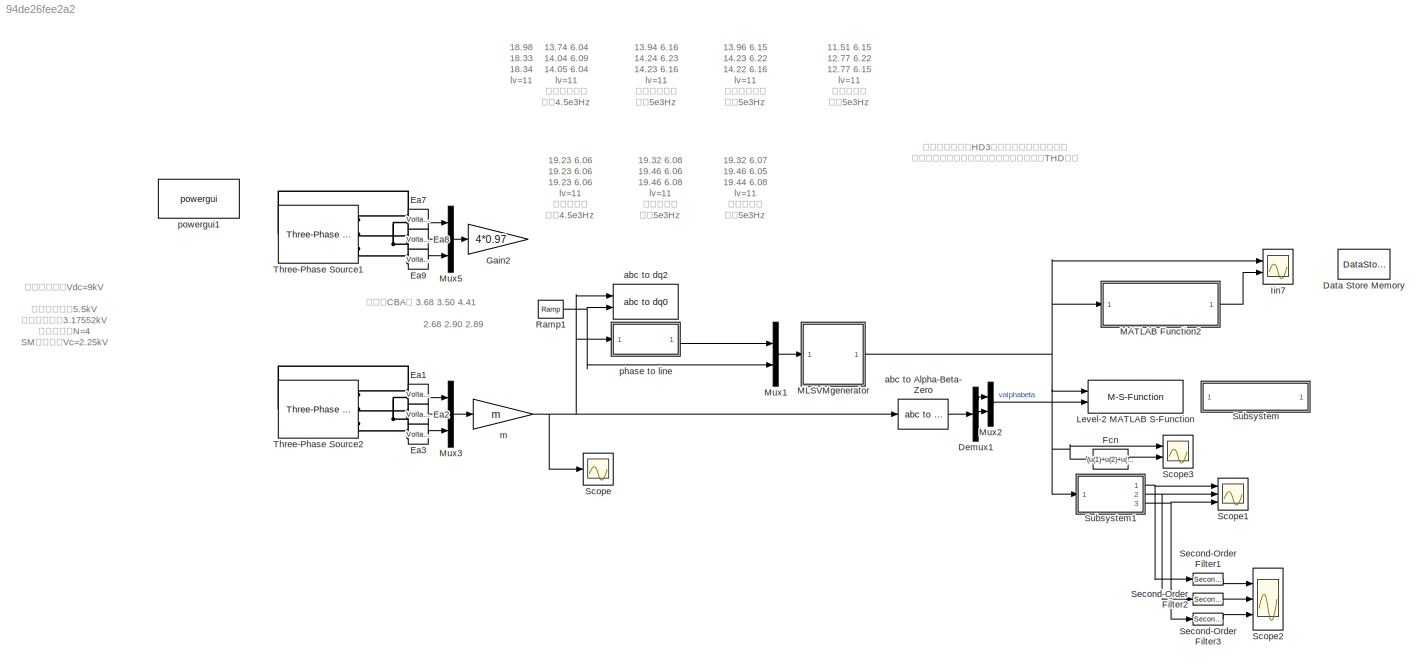
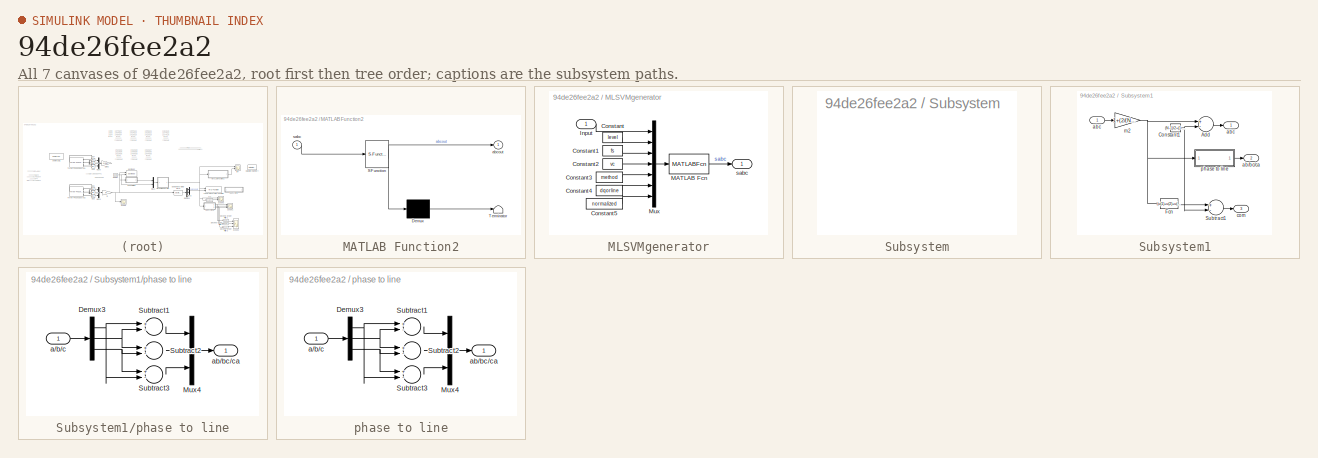
[diagram: thumbnail index - all 7 canvases of the model, root first then tree order]
MODEL slx_94de26fee2a2
KIND model
CONFIG AbsTol = auto
CONFIG EnableMultiTasking = on
CONFIG FixedStep = auto
CONFIG MaxStep = auto
CONFIG MinStep = auto
CONFIG RelTol = 1e-3
CONFIG SampleTimeConstraint = Unconstrained
CONFIG Solver = ode45
CONFIG SolverName = ode45
CONFIG StartTime = 0.0
CONFIG StopTime = 0.03
BLOCK [DataStoreMemory] Data Store Memory
  DataStoreName = prestate
  InitialValue = [0 0 0 0 0 0 0 1 0]
  OutDataTypeStr = double
  ReadBeforeWriteMsg = warning
  ShowAdditionalParam = off
  SignalType = real
  WriteAfterReadMsg = warning
  WriteAfterWriteMsg = warning
BLOCK [Demux] Demux1
  DisplayOption = bar
  Outputs = 3
  Ports = [1, 3]
BLOCK [Reference] Ea1  REF=powerlib/Measurements/Voltage Measurement
  Ports = [0, 1, 0, 0, 0, 2]
  SourceBlock = powerlib/Measurements/Voltage Measurement
  SourceProductBaseCode = PS
  SourceProductName = Simscape Power Systems
  SourceType = Voltage Measurement
BLOCK [Reference] Ea2  REF=powerlib/Measurements/Voltage Measurement
  Ports = [0, 1, 0, 0, 0, 2]
  SourceBlock = powerlib/Measurements/Voltage Measurement
  SourceProductBaseCode = PS
  SourceProductName = Simscape Power Systems
  SourceType = Voltage Measurement
BLOCK [Reference] Ea3  REF=powerlib/Measurements/Voltage Measurement
  Ports = [0, 1, 0, 0, 0, 2]
  SourceBlock = powerlib/Measurements/Voltage Measurement
  SourceProductBaseCode = PS
  SourceProductName = Simscape Power Systems
  SourceType = Voltage Measurement
BLOCK [Reference] Ea7  REF=powerlib/Measurements/Voltage Measurement
  Commented = on
  Ports = [0, 1, 0, 0, 0, 2]
  SourceBlock = powerlib/Measurements/Voltage Measurement
  SourceProductBaseCode = PS
  SourceProductName = Simscape Power Systems
  SourceType = Voltage Measurement
BLOCK [Reference] Ea8  REF=powerlib/Measurements/Voltage Measurement
  Commented = on
  Ports = [0, 1, 0, 0, 0, 2]
  SourceBlock = powerlib/Measurements/Voltage Measurement
  SourceProductBaseCode = PS
  SourceProductName = Simscape Power Systems
  SourceType = Voltage Measurement
BLOCK [Reference] Ea9  REF=powerlib/Measurements/Voltage Measurement
  Commented = on
  Ports = [0, 1, 0, 0, 0, 2]
  SourceBlock = powerlib/Measurements/Voltage Measurement
  SourceProductBaseCode = PS
  SourceProductName = Simscape Power Systems
  SourceType = Voltage Measurement
BLOCK [Fcn] Fcn
  Expr = (u(1)+u(2)+u(3))/3
BLOCK [Gain] Gain2
  Commented = on
  Gain = 4*0.97
  OutDataTypeStr = Inherit: Inherit via internal rule
  ParamDataTypeStr = Inherit: Inherit via internal rule
  SaturateOnIntegerOverflow = off
BLOCK [Scope] Iin7
  Commented = on
  NumInputPorts = 2
  Ports = [2]
  ScopeSpecificationString = Simulink.scopes.TimeScopeBlockCfg('CurrentConfiguration', extmgr.ConfigurationSet(extmgr.Configuration('Core','General UI',true),extmgr.Configuration('Core','Source UI',true),extmgr.Configuration('Sources','WiredSimulink',true,'DataLoggingVariableName','sabc','DataLoggingSaveFormat','StructureWithTime','DataLoggingDecimation','1','DataLoggingDecimateData',true,'DataLogging',true),extmgr.Configurat...<+2590ch>
BLOCK [M-S-Function] Level-2 MATLAB S-Function
  FunctionName = PlotSpaceVector
  Parameters = level, vdc, rate, normalized, plot, hexagon, sw, disabled
  Ports = [2]
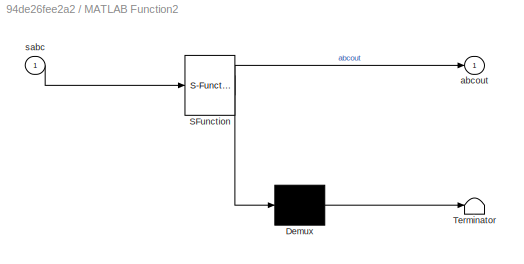
BLOCK [SubSystem] MATLAB Function2
  Commented = on
  ErrorFcn = Stateflow.Translate.translate
  PermitHierarchicalResolution = ExplicitOnly
  Ports = [1, 1]
  RequestExecContextInheritance = off
  SFBlockType = MATLAB Function
  TreatAsAtomicUnit = on
  Variant = off
BLOCK [Demux] MATLAB Function2/ Demux 
  Outputs = 1
  Ports = [1, 1]
BLOCK [S-Function] MATLAB Function2/ SFunction 
  EnableBusSupport = on
  FunctionName = sf_sfun
  PortCounts = [1 2]
  Ports = [1, 2]
  SFcnIsStateOwnerBlock = off
  SFunctionDeploymentMode = off
  Tag = Stateflow S-Function mysvm 4
BLOCK [Terminator] MATLAB Function2/ Terminator 
BLOCK [Outport] MATLAB Function2/abcout
  IconDisplay = Port number
BLOCK [Inport] MATLAB Function2/sabc
  IconDisplay = Port number
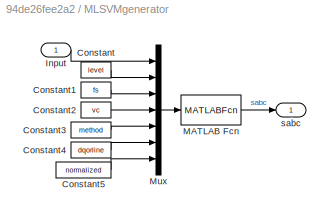
BLOCK [SubSystem] MLSVMgenerator
  Ports = [1, 1]
  RequestExecContextInheritance = off
  Variant = off
BLOCK [Constant] MLSVMgenerator/Constant
  Value = level
BLOCK [Constant] MLSVMgenerator/Constant1
  Value = fs
BLOCK [Constant] MLSVMgenerator/Constant2
  Value = vc
BLOCK [Constant] MLSVMgenerator/Constant3
  Value = method
BLOCK [Constant] MLSVMgenerator/Constant4
  Value = dqorline
BLOCK [Constant] MLSVMgenerator/Constant5
  Value = normalized
BLOCK [Inport] MLSVMgenerator/Input
  IconDisplay = Port number
BLOCK [MATLABFcn] MLSVMgenerator/MATLAB Fcn
  MATLABFcn = MLSVM_m_HD
  OutputSignalType = real
  Ports = [1, 1]
BLOCK [Mux] MLSVMgenerator/Mux
  DisplayOption = bar
  Inputs = 7
  Ports = [7, 1]
BLOCK [Outport] MLSVMgenerator/sabc
  IconDisplay = Port number
BLOCK [Mux] Mux1
  DisplayOption = bar
  Inputs = 2
  Ports = [2, 1]
BLOCK [Mux] Mux2
  DisplayOption = bar
  Inputs = 2
  Ports = [2, 1]
BLOCK [Mux] Mux3
  DisplayOption = bar
  Inputs = 3
  Ports = [3, 1]
BLOCK [Mux] Mux5
  Commented = on
  DisplayOption = bar
  Inputs = 3
  Ports = [3, 1]
BLOCK [Reference] Ramp1  REF=simulink/Sources/Ramp
  Ports = [0, 1]
  SourceBlock = simulink/Sources/Ramp
  SourceProductBaseCode = SL
  SourceProductName = Simulink
  SourceType = Ramp
BLOCK [Scope] Scope
  Commented = on
  NumInputPorts = 1
  Ports = [1]
  ScopeSpecificationString = Simulink.scopes.TimeScopeBlockCfg('CurrentConfiguration', extmgr.ConfigurationSet(extmgr.Configuration('Core','General UI',true),extmgr.Configuration('Core','Source UI',true),extmgr.Configuration('Sources','WiredSimulink',true,'DataLoggingVariableName','ScopeData1'),extmgr.Configuration('Visuals','Time Domain',true,'SerializedDisplays',{struct('MinYLimReal','-0.99683','MaxYLimReal','0.88854','YLab...<+1420ch>
BLOCK [Scope] Scope1
  NumInputPorts = 3
  Ports = [3]
  ScopeSpecificationString = Simulink.scopes.TimeScopeBlockCfg('CurrentConfiguration', extmgr.ConfigurationSet(extmgr.Configuration('Core','General UI',true),extmgr.Configuration('Core','Source UI',true),extmgr.Configuration('Sources','WiredSimulink',true,'DataLoggingVariableName','SVMoutput','DataLogging',true,'DataLoggingDecimateData',true,'DataLoggingDecimation','1','DataLoggingSaveFormat','StructureWithTime'),extmgr.Confi...<+1837ch>
BLOCK [Scope] Scope2
  NumInputPorts = 3
  Ports = [3]
  ScopeSpecificationString = Simulink.scopes.TimeScopeBlockCfg('CurrentConfiguration', extmgr.ConfigurationSet(extmgr.Configuration('Core','General UI',true),extmgr.Configuration('Core','Source UI',true),extmgr.Configuration('Sources','WiredSimulink',true,'DataLoggingVariableName','SVMoutput_Filtered','DataLogging',true,'DataLoggingDecimateData',true,'DataLoggingDecimation','1','DataLoggingSaveFormat','StructureWithTime'),ext...<+1871ch>
BLOCK [Scope] Scope3
  NumInputPorts = 2
  Ports = [2]
  ScopeSpecificationString = Simulink.scopes.TimeScopeBlockCfg('CurrentConfiguration', extmgr.ConfigurationSet(extmgr.Configuration('Core','General UI',true),extmgr.Configuration('Core','Source UI',true),extmgr.Configuration('Sources','WiredSimulink',true,'DataLoggingVariableName','sa','DataLogging',true,'DataLoggingSaveFormat','StructureWithTime'),extmgr.Configuration('Visuals','Time Domain',true,'SerializedDisplays',{struct...<+1609ch>
BLOCK [Reference] Second-Order Filter1  REF=powerlib_meascontrol/Filters/Second-Order
Filter
  Ports = [1, 1]
  SourceBlock = powerlib_meascontrol/Filters/Second-Order\nFilter
  SourceProductBaseCode = PS
  SourceProductName = Simscape Power Systems
  SourceType = Second-Order Filter
BLOCK [Reference] Second-Order Filter2  REF=powerlib_meascontrol/Filters/Second-Order
Filter
  Ports = [1, 1]
  SourceBlock = powerlib_meascontrol/Filters/Second-Order\nFilter
  SourceProductBaseCode = PS
  SourceProductName = Simscape Power Systems
  SourceType = Second-Order Filter
BLOCK [Reference] Second-Order Filter3  REF=powerlib_meascontrol/Filters/Second-Order
Filter
  Ports = [1, 1]
  SourceBlock = powerlib_meascontrol/Filters/Second-Order\nFilter
  SourceProductBaseCode = PS
  SourceProductName = Simscape Power Systems
  SourceType = Second-Order Filter
BLOCK [SubSystem] Subsystem
  AttributesFormatString = \n
  OpenFcn = open('<path>')
  Ports = []
  RequestExecContextInheritance = off
  Variant = off
BLOCK [SubSystem] Subsystem1
  Ports = [1, 3]
  RequestExecContextInheritance = off
  Variant = off
BLOCK [Sum] Subsystem1/Add
  InputSameDT = off
  Inputs = +-
  OutDataTypeStr = Inherit: Inherit via internal rule
  Ports = [2, 1]
  SaturateOnIntegerOverflow = off
BLOCK [Constant] Subsystem1/Constant1
  Value = (N-1)/2+(1-(N-1)/2)*normal
BLOCK [Fcn] Subsystem1/Fcn
  Expr = (u(1)+u(2)+u(3))/3
BLOCK [Sum] Subsystem1/Subtract1
  InputSameDT = off
  Inputs = +-
  OutDataTypeStr = Inherit: Inherit via internal rule
  Ports = [2, 1]
  SaturateOnIntegerOverflow = off
BLOCK [Outport] Subsystem1/ab//bc//ca
  IconDisplay = Port number
  Port = 2
BLOCK [Outport] Subsystem1/abc
  IconDisplay = Port number
BLOCK [Inport] Subsystem1/abc 
  IconDisplay = Port number
BLOCK [Outport] Subsystem1/com
  IconDisplay = Port number
  Port = 3
BLOCK [Gain] Subsystem1/m2
  Gain = 1+(2/(N-1)-1)*normal
  OutDataTypeStr = Inherit: Inherit via internal rule
  ParamDataTypeStr = Inherit: Inherit via internal rule
  SaturateOnIntegerOverflow = off
BLOCK [SubSystem] Subsystem1/phase to line
  Ports = [1, 1]
  RequestExecContextInheritance = off
  Variant = off
BLOCK [Demux] Subsystem1/phase to line/Demux3
  DisplayOption = bar
  Outputs = 3
  Ports = [1, 3]
BLOCK [Mux] Subsystem1/phase to line/Mux4
  DisplayOption = bar
  Inputs = 3
  Ports = [3, 1]
BLOCK [Sum] Subsystem1/phase to line/Subtract1
  InputSameDT = off
  Inputs = +-
  OutDataTypeStr = Inherit: Inherit via internal rule
  Ports = [2, 1]
  SaturateOnIntegerOverflow = off
BLOCK [Sum] Subsystem1/phase to line/Subtract2
  InputSameDT = off
  Inputs = +-
  OutDataTypeStr = Inherit: Inherit via internal rule
  Ports = [2, 1]
  SaturateOnIntegerOverflow = off
BLOCK [Sum] Subsystem1/phase to line/Subtract3
  InputSameDT = off
  Inputs = +-
  OutDataTypeStr = Inherit: Inherit via internal rule
  Ports = [2, 1]
  SaturateOnIntegerOverflow = off
BLOCK [Inport] Subsystem1/phase to line/a//b//c
  IconDisplay = Port number
BLOCK [Outport] Subsystem1/phase to line/ab//bc//ca
  IconDisplay = Port number
BLOCK [Reference] Three-Phase Source1  REF=powerlib/Electrical
Sources/Three-Phase Source
  Commented = on
  Ports = [0, 0, 0, 0, 0, 1, 3]
  SourceBlock = powerlib/Electrical\nSources/Three-Phase Source
  SourceProductBaseCode = PS
  SourceProductName = Simscape Power Systems
  SourceType = Three-Phase Source
BLOCK [Reference] Three-Phase Source2  REF=powerlib/Electrical
Sources/Three-Phase Source
  Ports = [0, 0, 0, 0, 0, 1, 3]
  SourceBlock = powerlib/Electrical\nSources/Three-Phase Source
  SourceProductBaseCode = PS
  SourceProductName = Simscape Power Systems
  SourceType = Three-Phase Source
BLOCK [Reference] abc to Alpha-Beta-Zero  REF=powerlib_meascontrol/Transformations/abc to
Alpha-Beta-Zero
  Ports = [1, 1]
  SourceBlock = powerlib_meascontrol/Transformations/abc to\nAlpha-Beta-Zero
  SourceProductBaseCode = PS
  SourceProductName = Simscape Power Systems
  SourceType = abc to Alpha-Beta-Zero Transformation
BLOCK [Reference] abc to dq2  REF=powerlib_meascontrol/Transformations/abc to dq0
  Commented = on
  Ports = [2, 1]
  SourceBlock = powerlib_meascontrol/Transformations/abc to dq0
  SourceProductBaseCode = PS
  SourceProductName = Simscape Power Systems
  SourceType = abc to dq0 Transformation
BLOCK [Gain] m
  Gain = m
  OutDataTypeStr = Inherit: Inherit via internal rule
  ParamDataTypeStr = Inherit: Inherit via internal rule
  SaturateOnIntegerOverflow = off
BLOCK [SubSystem] phase to line
  Ports = [1, 1]
  RequestExecContextInheritance = off
  Variant = off
BLOCK [Demux] phase to line/Demux3
  DisplayOption = bar
  Outputs = 3
  Ports = [1, 3]
BLOCK [Mux] phase to line/Mux4
  DisplayOption = bar
  Inputs = 3
  Ports = [3, 1]
BLOCK [Sum] phase to line/Subtract1
  InputSameDT = off
  Inputs = +-
  OutDataTypeStr = Inherit: Inherit via internal rule
  Ports = [2, 1]
  SaturateOnIntegerOverflow = off
BLOCK [Sum] phase to line/Subtract2
  InputSameDT = off
  Inputs = +-
  OutDataTypeStr = Inherit: Inherit via internal rule
  Ports = [2, 1]
  SaturateOnIntegerOverflow = off
BLOCK [Sum] phase to line/Subtract3
  InputSameDT = off
  Inputs = +-
  OutDataTypeStr = Inherit: Inherit via internal rule
  Ports = [2, 1]
  SaturateOnIntegerOverflow = off
BLOCK [Inport] phase to line/a//b//c
  IconDisplay = Port number
BLOCK [Outport] phase to line/ab//bc//ca
  IconDisplay = Port number
BLOCK [Reference] powergui1  REF=powerlib/powergui
  Ports = []
  Priority = 1
  SourceBlock = powerlib/powergui
  SourceProductBaseCode = PS
  SourceProductName = Simscape Power Systems
  SourceType = PSB option menu block
ANNOTATION (root): 11.51 6.15 12.77 6.22 12.77 6.15 lv=11 共模不限幅 开关5e3Hz 仿真间隔5e-6 共模-2~+3
ANNOTATION (root): 13.74 6.04 14.04 6.09 14.05 6.04 lv=11 先共模再限幅 均为4.5e3Hz -3~+3
ANNOTATION (root): 13.94 6.16 14.24 6.23 14.23 6.16 lv=11 先共模再限幅 开关5e3Hz -3~+3
ANNOTATION (root): 13.96 6.15 14.23 6.22 14.22 6.16 lv=11 先共模再限幅 开关5e3Hz 仿真间隔5e-6 共模-3~+3
ANNOTATION (root): 18.98 18.33 18.34 lv=11
ANNOTATION (root): 19.23 6.06 19.23 6.06 19.23 6.06 lv=11 共模不限幅 开关4.5e3Hz 仿真间隔1e-6 -4~+5
ANNOTATION (root): 19.32 6.07 19.46 6.05 19.44 6.08 lv=11 共模不限幅 开关5e3Hz 仿真间隔5e-6 共模-4~+5
ANNOTATION (root): 19.32 6.08 19.46 6.06 19.46 6.08 lv=11 共模不限幅 开关5e3Hz 仿真间隔1e-6 -4~+5
ANNOTATION (root): 2.68 2.90 2.89
ANNOTATION (root): 倒三角CBA降 3.68 3.50 4.41
ANNOTATION (root): 共模较高，因为HD3是第一个开关状态就提高 而普通方法只对超限的部分修改，但也因此THD较高
ANNOTATION (root): 直流母线电压Vdc=9kV 输出线电压：5.5kV 输出相电压：3.17552kV 桥臂子模块N=4 SM电容电压Vc=2.25kV 开关频率fs=5kHz
LINE Demux1:1 -> Mux2:1
LINE Demux1:2 -> Mux2:2
LINE Ea1:1 -> Mux3:1
LINE Ea2:1 -> Mux3:2
LINE Ea3:1 -> Mux3:3
LINE Ea7:1 -> Mux5:1
LINE Ea8:1 -> Mux5:2
LINE Ea9:1 -> Mux5:3
LINE Fcn:1 -> Scope3:2
LINE MATLAB Function2:1 -> Iin7:2
LINE MLSVMgenerator/Constant1:1 -> MLSVMgenerator/Mux:3
LINE MLSVMgenerator/Constant2:1 -> MLSVMgenerator/Mux:4
LINE MLSVMgenerator/Constant3:1 -> MLSVMgenerator/Mux:5
LINE MLSVMgenerator/Constant4:1 -> MLSVMgenerator/Mux:6
LINE MLSVMgenerator/Constant5:1 -> MLSVMgenerator/Mux:7
LINE MLSVMgenerator/Constant:1 -> MLSVMgenerator/Mux:2
LINE MLSVMgenerator/Input:1 -> MLSVMgenerator/Mux:1
LINE MLSVMgenerator/MATLAB Fcn:1 -> MLSVMgenerator/sabc:1
LINE MLSVMgenerator/Mux:1 -> MLSVMgenerator/MATLAB Fcn:1
NET MLSVMgenerator:1 -> Fcn:1, Iin7:1, Level-2 MATLAB S-Function:1, MATLAB Function2:1, Scope3:1, Subsystem1:1
LINE Mux1:1 -> MLSVMgenerator:1
LINE Mux2:1 -> Level-2 MATLAB S-Function:2
LINE Mux3:1 -> m:1
LINE Mux5:1 -> Gain2:1
NET Ramp1:1 -> Mux1:2, abc to dq2:2
LINE Second-Order Filter1:1 -> Scope2:1
LINE Second-Order Filter2:1 -> Scope2:2
LINE Second-Order Filter3:1 -> Scope2:3
LINE Subsystem1/Add:1 -> Subsystem1/abc:1
NET Subsystem1/Constant1:1 -> Subsystem1/Add:2, Subsystem1/Subtract1:2
LINE Subsystem1/Fcn:1 -> Subsystem1/Subtract1:1
LINE Subsystem1/Subtract1:1 -> Subsystem1/com:1
LINE Subsystem1/abc :1 -> Subsystem1/m2:1
NET Subsystem1/m2:1 -> Subsystem1/Add:1, Subsystem1/Fcn:1, Subsystem1/phase to line:1
NET Subsystem1/phase to line/Demux3:1 -> Subsystem1/phase to line/Subtract1:1, Subsystem1/phase to line/Subtract3:2
NET Subsystem1/phase to line/Demux3:2 -> Subsystem1/phase to line/Subtract1:2, Subsystem1/phase to line/Subtract2:1
NET Subsystem1/phase to line/Demux3:3 -> Subsystem1/phase to line/Subtract2:2, Subsystem1/phase to line/Subtract3:1
LINE Subsystem1/phase to line/Mux4:1 -> Subsystem1/phase to line/ab//bc//ca:1
LINE Subsystem1/phase to line/Subtract1:1 -> Subsystem1/phase to line/Mux4:1
LINE Subsystem1/phase to line/Subtract2:1 -> Subsystem1/phase to line/Mux4:2
LINE Subsystem1/phase to line/Subtract3:1 -> Subsystem1/phase to line/Mux4:3
LINE Subsystem1/phase to line/a//b//c:1 -> Subsystem1/phase to line/Demux3:1
LINE Subsystem1/phase to line:1 -> Subsystem1/ab//bc//ca:1
NET Subsystem1:1 -> Scope1:1, Second-Order Filter1:1
NET Subsystem1:2 -> Scope1:2, Second-Order Filter2:1
NET Subsystem1:3 -> Scope1:3, Second-Order Filter3:1
LINE abc to Alpha-Beta-Zero:1 -> Demux1:1
NET m:1 -> Scope:1, abc to Alpha-Beta-Zero:1, abc to dq2:1, phase to line:1
NET phase to line/Demux3:1 -> phase to line/Subtract1:1, phase to line/Subtract3:2
NET phase to line/Demux3:2 -> phase to line/Subtract1:2, phase to line/Subtract2:1
NET phase to line/Demux3:3 -> phase to line/Subtract2:2, phase to line/Subtract3:1
LINE phase to line/Mux4:1 -> phase to line/ab//bc//ca:1
LINE phase to line/Subtract1:1 -> phase to line/Mux4:1
LINE phase to line/Subtract2:1 -> phase to line/Mux4:2
LINE phase to line/Subtract3:1 -> phase to line/Mux4:3
LINE phase to line/a//b//c:1 -> phase to line/Demux3:1
LINE phase to line:1 -> Mux1:1
PLINE Ea1:LConn1 -- Three-Phase Source2:RConn1
PNET net1: Ea1:LConn2 -- Ea2:LConn2 -- Ea3:LConn2 -- Three-Phase Source2:LConn1
PLINE Ea2:LConn1 -- Three-Phase Source2:RConn2
PLINE Ea3:LConn1 -- Three-Phase Source2:RConn3
PLINE Ea7:LConn1 -- Three-Phase Source1:RConn1
PNET net2: Ea7:LConn2 -- Ea8:LConn2 -- Ea9:LConn2 -- Three-Phase Source1:LConn1
PLINE Ea8:LConn1 -- Three-Phase Source1:RConn2
PLINE Ea9:LConn1 -- Three-Phase Source1:RConn3
note: NET lines group one-source signal fan-out (src -> all destinations, sorted); 1:1 wires keep LINE; PNET lines group multi-terminal physical nets as a canonical sorted terminal list (undirected conserving connections); 2-terminal nets keep the pairwise PLINE form
CHART MATLAB Function2 states=1 transitions=1
  STATE_LABEL 'eML_blk_kernel()'
  STATE_LABEL 'SCRIPT:\nfunction abcout = TwoN_1(sabc)\n\nsa = sabc(1);\nsb = sabc(2);\nsc = sabc(3);\nN = 5;\n\nglobal prestate\npresa = prestate(1);\ncounta = prestate(2);\nadc_ = prestate(3);\npresb = prestate(4);\ncountb = prestate(5);\nbdc_ = prestate(6);\npresc = prestate(7);\ncountc = prestate(8);\ncdc_ = prestate(9);\n\nsa_ = sa - presa;\nsb_ = sb - presb;\nsc_ = sc - presc;\n% nc = 0;\n\nif sa_ == 0\n    \nelse\n    na = floor((s...<+2411ch>'
note: 1 file-system path scrubbed to <path> (not preserved elsewhere — flat text is the only slx artifact)
